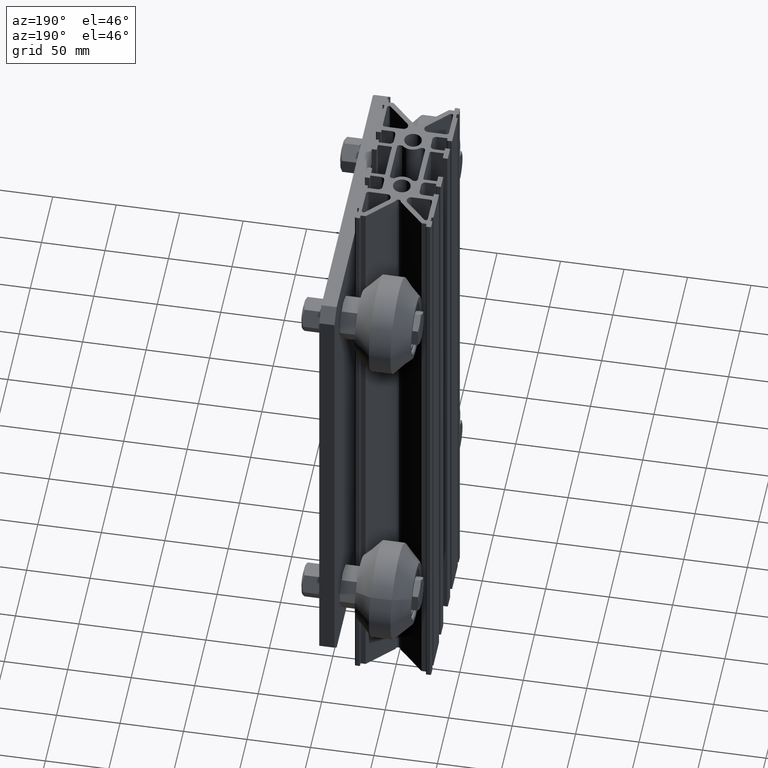
[diagram: clean part render]
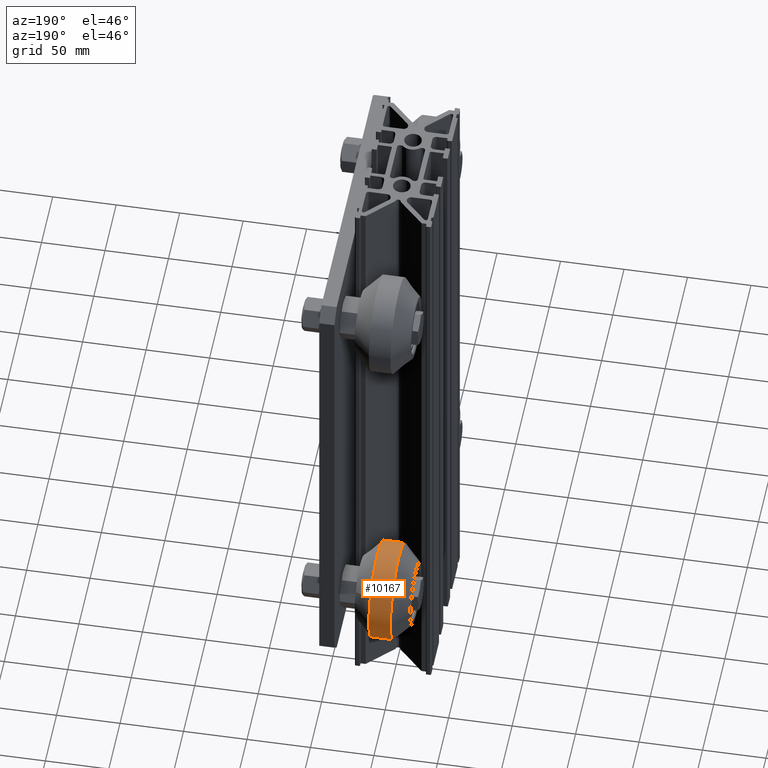
[diagram: same view with one face highlighted and labeled with its STEP entity id]
A machine part, auxiliary view. The second image highlights one B-rep face of the part: STEP entity #10167.
In plain terms, the highlighted cylindrical surface (bore or boss wall) has radius 38 mm, axis along (-1, -0, 0).
Its self-contained STEP definition (entity closure, byte-faithful):
#560=CYLINDRICAL_SURFACE('',#11411,38.);
#1082=FACE_OUTER_BOUND('',#1640,.T.);
#1640=EDGE_LOOP('',(#8892,#8893,#8894,#8895));
#2165=CIRCLE('',#11410,38.);
#2166=CIRCLE('',#11412,38.);
#2969=LINE('',#17452,#3738);
#3738=VECTOR('',#14066,38.);
#4650=VERTEX_POINT('',#17446);
#4651=VERTEX_POINT('',#17450);
#6096=EDGE_CURVE('',#4650,#4650,#2165,.T.);
#6098=EDGE_CURVE('',#4651,#4651,#2166,.T.);
#6099=EDGE_CURVE('',#4651,#4650,#2969,.T.);
#8892=ORIENTED_EDGE('',*,*,#6098,.F.);
#8893=ORIENTED_EDGE('',*,*,#6099,.T.);
#8894=ORIENTED_EDGE('',*,*,#6096,.T.);
#8895=ORIENTED_EDGE('',*,*,#6099,.F.);
#10167=ADVANCED_FACE('',(#1082),#560,.T.);
#11410=AXIS2_PLACEMENT_3D('',#17447,#14059,#14060);
#11411=AXIS2_PLACEMENT_3D('',#17449,#14062,#14063);
#11412=AXIS2_PLACEMENT_3D('',#17451,#14064,#14065);
#14059=DIRECTION('center_axis',(1.,0.,0.));
#14060=DIRECTION('ref_axis',(0.,1.,0.));
#14062=DIRECTION('center_axis',(1.,0.,0.));
#14063=DIRECTION('ref_axis',(0.,1.,0.));
#14064=DIRECTION('center_axis',(1.,0.,0.));
#14065=DIRECTION('ref_axis',(0.,1.,0.));
#14066=DIRECTION('',(-1.,0.,0.));
#17446=CARTESIAN_POINT('',(-8.5,-38.,-4.65365783675994E-15));
#17447=CARTESIAN_POINT('Origin',(-8.5,0.,0.));
#17449=CARTESIAN_POINT('Origin',(0.,0.,0.));
#17450=CARTESIAN_POINT('',(8.5,-38.,-4.65365783675994E-15));
#17451=CARTESIAN_POINT('Origin',(8.5,0.,0.));
#17452=CARTESIAN_POINT('',(0.,-38.,-4.65365783675994E-15));